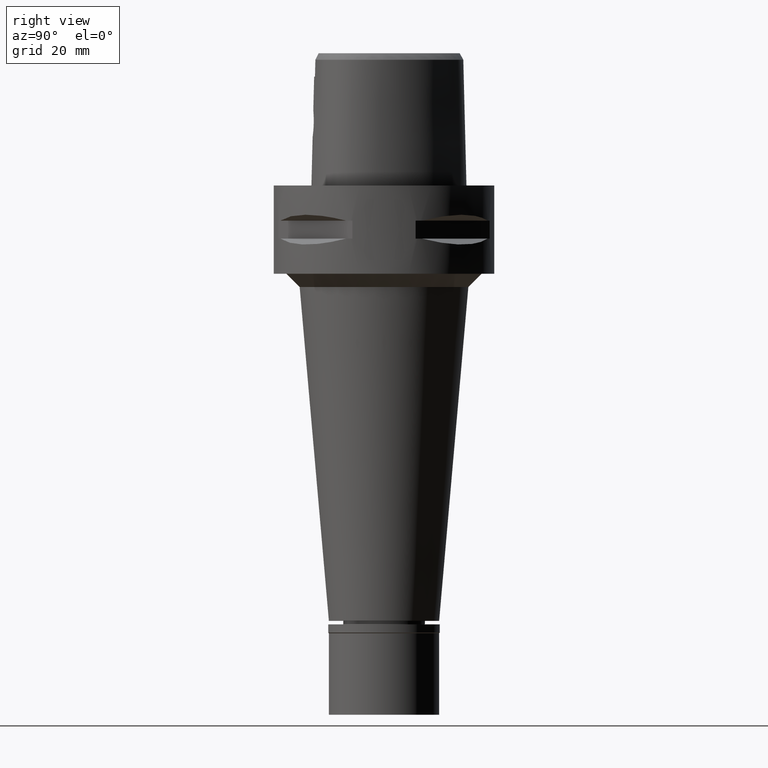
[diagram: clean part render]
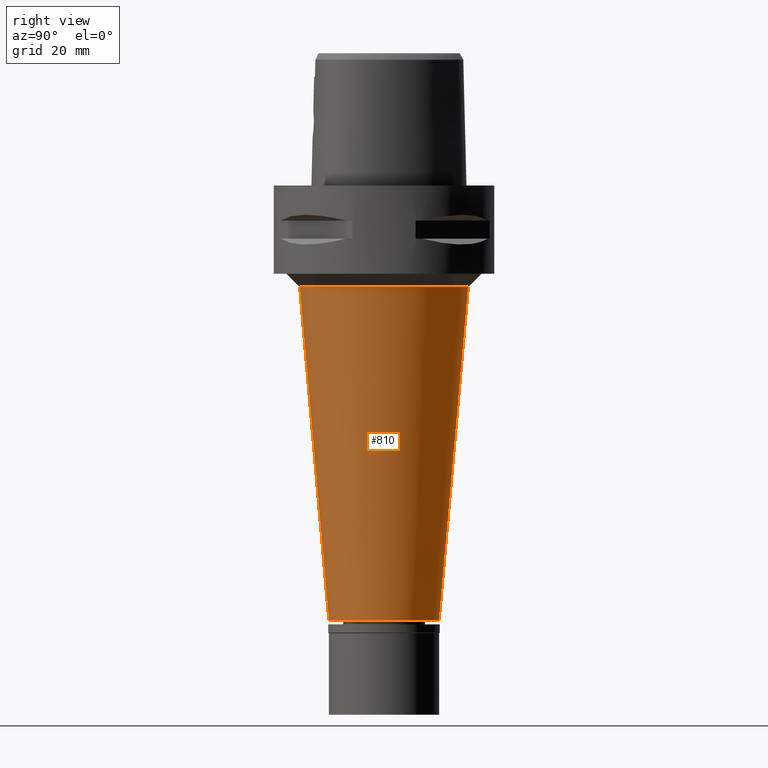
[diagram: same view with one face highlighted and labeled with its STEP entity id]
A machine part, right view. The second image highlights one B-rep face of the part: STEP entity #810.
In plain terms, the highlighted conical surface has half-angle 5 deg.
Its self-contained STEP definition (entity closure, byte-faithful):
#114 = CARTESIAN_POINT ( 'NONE',  ( 0.0000000000000000000, -19.12289182891000294, -23.00000000000000000 ) ) ;
#161 = AXIS2_PLACEMENT_3D ( 'NONE', #3632, #1679, #3989 ) ;
#289 = ORIENTED_EDGE ( 'NONE', *, *, #4532, .T. ) ;
#347 = DIRECTION ( 'NONE',  ( 0.0000000000000000000, -1.000000000000000000, 0.0000000000000000000 ) ) ;
#429 = ORIENTED_EDGE ( 'NONE', *, *, #760, .F. ) ;
#481 = DIRECTION ( 'NONE',  ( 0.0000000000000000000, -0.08715574274763414342, -0.9961946980917475436 ) ) ;
#555 = CIRCLE ( 'NONE', #3357, 12.50000000000000000 ) ;
#760 = EDGE_CURVE ( 'NONE', #3162, #4128, #1654, .T. ) ;
#810 = ADVANCED_FACE ( 'NONE', ( #899 ), #3127, .T. ) ;
#824 = CARTESIAN_POINT ( 'NONE',  ( 0.0000000000000000000, 0.0000000000000000000, -98.70000000000000284 ) ) ;
#899 = FACE_OUTER_BOUND ( 'NONE', #1453, .T. ) ;
#904 = DIRECTION ( 'NONE',  ( 0.0000000000000000000, -1.000000000000000000, 0.0000000000000000000 ) ) ;
#1231 = CARTESIAN_POINT ( 'NONE',  ( 0.0000000000000000000, 0.0000000000000000000, -23.00000000000000000 ) ) ;
#1289 = VECTOR ( 'NONE', #481, 1000.000000000000114 ) ;
#1453 = EDGE_LOOP ( 'NONE', ( #2746, #4226, #289, #429 ) ) ;
#1588 = LINE ( 'NONE', #114, #2315 ) ;
#1654 = LINE ( 'NONE', #3176, #1289 ) ;
#1679 = DIRECTION ( 'NONE',  ( 0.0000000000000000000, 0.0000000000000000000, 1.000000000000000000 ) ) ;
#2040 = DIRECTION ( 'NONE',  ( 0.0000000000000000000, 0.0000000000000000000, 1.000000000000000000 ) ) ;
#2138 = AXIS2_PLACEMENT_3D ( 'NONE', #1231, #2040, #904 ) ;
#2257 = DIRECTION ( 'NONE',  ( 0.0000000000000000000, 0.0000000000000000000, 1.000000000000000000 ) ) ;
#2315 = VECTOR ( 'NONE', #2381, 1000.000000000000114 ) ;
#2381 = DIRECTION ( 'NONE',  ( 0.0000000000000000000, 0.08715574274763414342, -0.9961946980917475436 ) ) ;
#2542 = VERTEX_POINT ( 'NONE', #4894 ) ;
#2575 = CARTESIAN_POINT ( 'NONE',  ( 0.0000000000000000000, 19.12289182891000294, -23.00000000000000000 ) ) ;
#2664 = EDGE_CURVE ( 'NONE', #3805, #3162, #4150, .T. ) ;
#2746 = ORIENTED_EDGE ( 'NONE', *, *, #2664, .F. ) ;
#3127 = CONICAL_SURFACE ( 'NONE', #161, 15.81144591445999836, 0.08726646259969973729 ) ;
#3162 = VERTEX_POINT ( 'NONE', #2575 ) ;
#3176 = CARTESIAN_POINT ( 'NONE',  ( 0.0000000000000000000, 19.12289182891000294, -23.00000000000000000 ) ) ;
#3357 = AXIS2_PLACEMENT_3D ( 'NONE', #824, #2257, #347 ) ;
#3412 = CARTESIAN_POINT ( 'NONE',  ( 0.0000000000000000000, -19.12289182891000294, -23.00000000000000000 ) ) ;
#3632 = CARTESIAN_POINT ( 'NONE',  ( 0.0000000000000000000, 0.0000000000000000000, -60.85000000000000142 ) ) ;
#3805 = VERTEX_POINT ( 'NONE', #3412 ) ;
#3989 = DIRECTION ( 'NONE',  ( 0.0000000000000000000, 1.000000000000000000, 0.0000000000000000000 ) ) ;
#3998 = EDGE_CURVE ( 'NONE', #3805, #2542, #1588, .T. ) ;
#4128 = VERTEX_POINT ( 'NONE', #4662 ) ;
#4150 = CIRCLE ( 'NONE', #2138, 19.12289182892000028 ) ;
#4226 = ORIENTED_EDGE ( 'NONE', *, *, #3998, .T. ) ;
#4532 = EDGE_CURVE ( 'NONE', #2542, #4128, #555, .T. ) ;
#4662 = CARTESIAN_POINT ( 'NONE',  ( 0.0000000000000000000, 12.50000000000000000, -98.70000000000000284 ) ) ;
#4894 = CARTESIAN_POINT ( 'NONE',  ( 0.0000000000000000000, -12.50000000000000000, -98.70000000000000284 ) ) ;